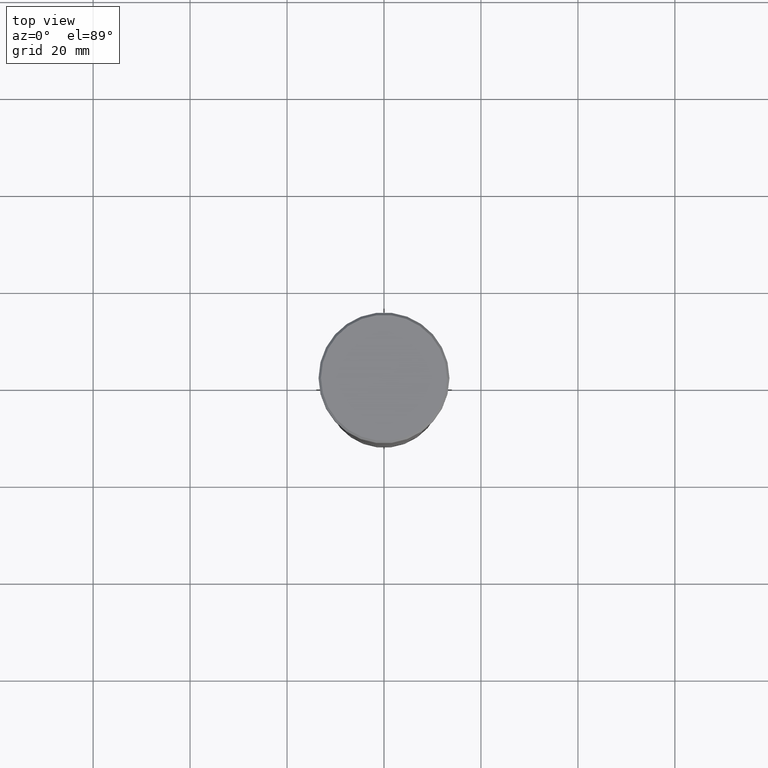
[diagram: clean part render]
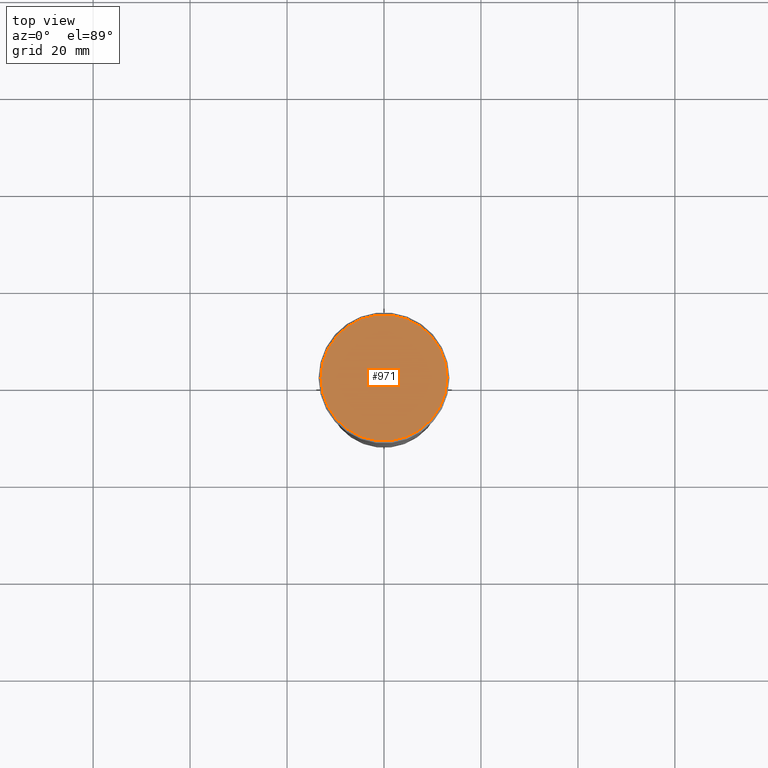
[diagram: same view with one face highlighted and labeled with its STEP entity id]
A machine part, top view. The second image highlights one B-rep face of the part: STEP entity #971.
In plain terms, the highlighted planar face has unit normal (0, -0, 1).
Its self-contained STEP definition (entity closure, byte-faithful):
#37 = EDGE_CURVE ( 'NONE', #56, #223, #260, .T. ) ;
#52 = DIRECTION ( 'NONE',  ( -0.000000000000000000, -0.000000000000000000, 1.000000000000000000 ) ) ;
#56 = VERTEX_POINT ( 'NONE', #553 ) ;
#88 = DIRECTION ( 'NONE',  ( 1.000000000000000000, 0.000000000000000000, 0.000000000000000000 ) ) ;
#99 = PLANE ( 'NONE',  #590 ) ;
#189 = AXIS2_PLACEMENT_3D ( 'NONE', #474, #52, #578 ) ;
#213 = ORIENTED_EDGE ( 'NONE', *, *, #37, .T. ) ;
#223 = VERTEX_POINT ( 'NONE', #518 ) ;
#260 = CIRCLE ( 'NONE', #1099, 12.99999999999999289 ) ;
#335 = EDGE_CURVE ( 'NONE', #223, #56, #732, .T. ) ;
#429 = CARTESIAN_POINT ( 'NONE',  ( 0.000000000000000000, 0.000000000000000000, 0.000000000000000000 ) ) ;
#470 = DIRECTION ( 'NONE',  ( -0.000000000000000000, -0.000000000000000000, 1.000000000000000000 ) ) ;
#474 = CARTESIAN_POINT ( 'NONE',  ( 0.000000000000000000, 0.000000000000000000, 0.000000000000000000 ) ) ;
#518 = CARTESIAN_POINT ( 'NONE',  ( 12.99999999999999289, 1.622657008870242488E-15, 0.000000000000000000 ) ) ;
#520 = FACE_OUTER_BOUND ( 'NONE', #1001, .T. ) ;
#553 = CARTESIAN_POINT ( 'NONE',  ( -12.99999999999999289, 0.000000000000000000, 0.000000000000000000 ) ) ;
#578 = DIRECTION ( 'NONE',  ( 1.000000000000000000, 0.000000000000000000, 0.000000000000000000 ) ) ;
#590 = AXIS2_PLACEMENT_3D ( 'NONE', #429, #626, #88 ) ;
#626 = DIRECTION ( 'NONE',  ( 0.000000000000000000, -0.000000000000000000, 1.000000000000000000 ) ) ;
#627 = CARTESIAN_POINT ( 'NONE',  ( 0.000000000000000000, 0.000000000000000000, 0.000000000000000000 ) ) ;
#732 = CIRCLE ( 'NONE', #189, 12.99999999999999289 ) ;
#812 = ORIENTED_EDGE ( 'NONE', *, *, #335, .T. ) ;
#971 = ADVANCED_FACE ( 'NONE', ( #520 ), #99, .T. ) ;
#1001 = EDGE_LOOP ( 'NONE', ( #213, #812 ) ) ;
#1087 = DIRECTION ( 'NONE',  ( 1.000000000000000000, 0.000000000000000000, 0.000000000000000000 ) ) ;
#1099 = AXIS2_PLACEMENT_3D ( 'NONE', #627, #470, #1087 ) ;